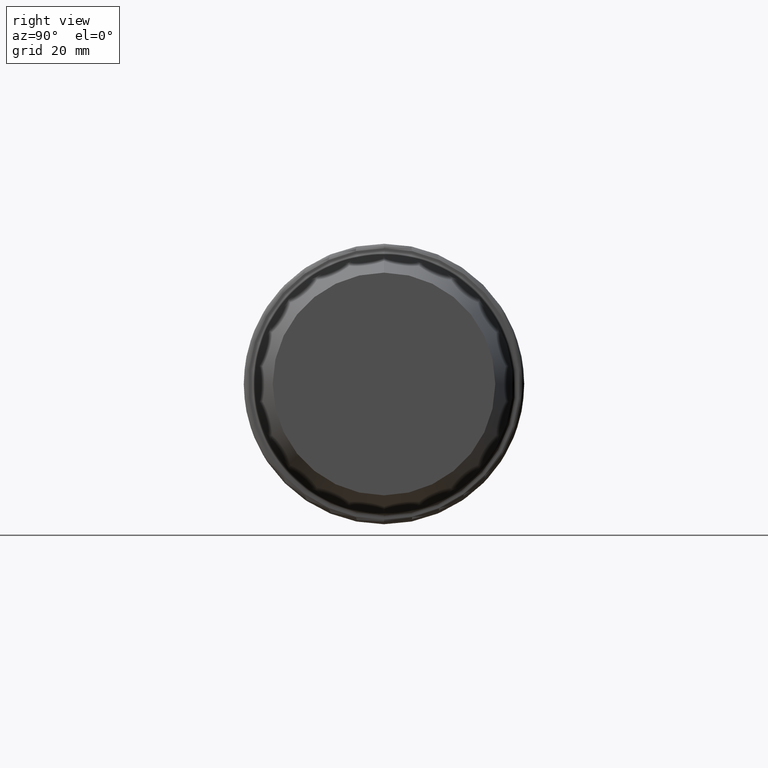
[diagram: clean part render]
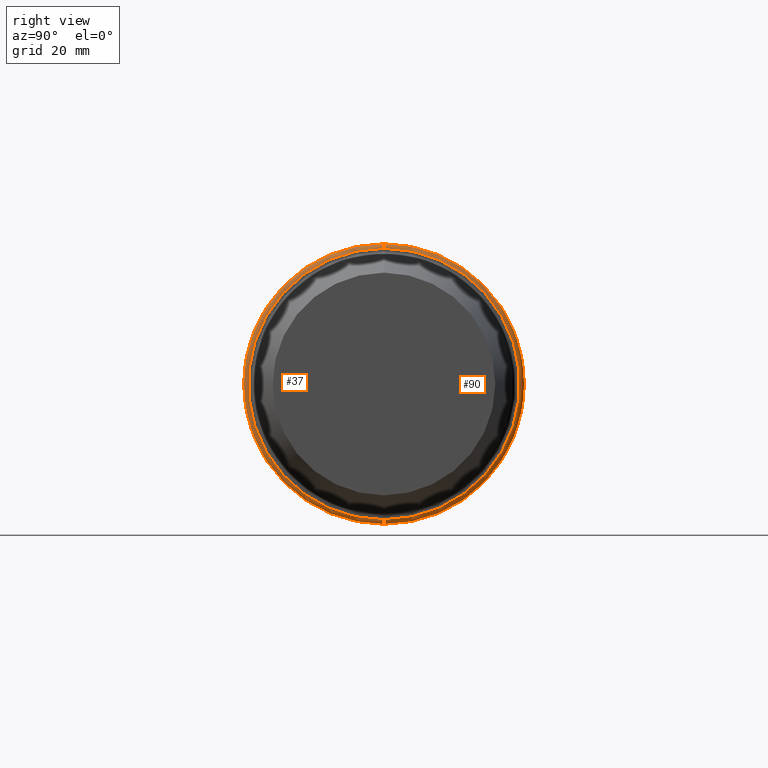
[diagram: same view with one multi-face feature highlighted, each face labeled with its STEP entity id]
A machine part, right view. The highlighted faces form ONE feature: a constant-radius fillet chain: 2 tangent blend faces with common blend radius 1 mm. The faces share edges in the B-rep.
Their STEP definitions:
[1] entity #90 (Torus):
#12 = CARTESIAN_POINT ( 'NONE',  ( 20.99999997694130016, 0.000000000000000000, 31.49249997071599338 ) ) ;
#15 = DIRECTION ( 'NONE',  ( -1.000000000000000000, 0.000000000000000000, 0.000000000000000000 ) ) ;
#21 = EDGE_CURVE ( 'NONE', #157, #488, #273, .T. ) ;
#27 = ORIENTED_EDGE ( 'NONE', *, *, #278, .F. ) ;
#47 = AXIS2_PLACEMENT_3D ( 'NONE', #496, #111, #208 ) ;
#56 = EDGE_CURVE ( 'NONE', #213, #157, #134, .T. ) ;
#90 = ADVANCED_FACE ( 'NONE', ( #334 ), #381, .T. ) ;
#111 = DIRECTION ( 'NONE',  ( -1.000000000000000000, 0.000000000000000000, 0.000000000000000000 ) ) ;
#118 = CIRCLE ( 'NONE', #178, 0.9999999989800008038 ) ;
#134 = CIRCLE ( 'NONE', #47, 30.49249997173599169 ) ;
#136 = CIRCLE ( 'NONE', #422, 31.49249997071599338 ) ;
#145 = AXIS2_PLACEMENT_3D ( 'NONE', #243, #419, #288 ) ;
#150 = EDGE_LOOP ( 'NONE', ( #538, #180, #274, #27 ) ) ;
#157 = VERTEX_POINT ( 'NONE', #468 ) ;
#167 = AXIS2_PLACEMENT_3D ( 'NONE', #535, #499, #231 ) ;
#178 = AXIS2_PLACEMENT_3D ( 'NONE', #401, #265, #357 ) ;
#180 = ORIENTED_EDGE ( 'NONE', *, *, #21, .T. ) ;
#208 = DIRECTION ( 'NONE',  ( 0.000000000000000000, 0.000000000000000000, 1.000000000000000000 ) ) ;
#213 = VERTEX_POINT ( 'NONE', #435 ) ;
#231 = DIRECTION ( 'NONE',  ( 0.000000000000000000, -1.224646799147354193E-16, 1.000000000000000000 ) ) ;
#243 = CARTESIAN_POINT ( 'NONE',  ( 20.99999997694130016, 0.000000000000000000, 0.000000000000000000 ) ) ;
#247 = CARTESIAN_POINT ( 'NONE',  ( 20.99999997694130016, 0.000000000000000000, 0.000000000000000000 ) ) ;
#265 = DIRECTION ( 'NONE',  ( 0.000000000000000000, -1.000000000000000000, 0.000000000000000000 ) ) ;
#273 = CIRCLE ( 'NONE', #167, 0.9999999989800008038 ) ;
#274 = ORIENTED_EDGE ( 'NONE', *, *, #362, .F. ) ;
#278 = EDGE_CURVE ( 'NONE', #213, #375, #118, .T. ) ;
#288 = DIRECTION ( 'NONE',  ( 0.000000000000000000, 0.000000000000000000, 1.000000000000000000 ) ) ;
#303 = DIRECTION ( 'NONE',  ( 0.000000000000000000, 0.000000000000000000, 1.000000000000000000 ) ) ;
#334 = FACE_OUTER_BOUND ( 'NONE', #150, .T. ) ;
#357 = DIRECTION ( 'NONE',  ( 0.000000000000000000, 0.000000000000000000, -1.000000000000000000 ) ) ;
#362 = EDGE_CURVE ( 'NONE', #375, #488, #136, .T. ) ;
#375 = VERTEX_POINT ( 'NONE', #12 ) ;
#381 = TOROIDAL_SURFACE ( 'NONE', #145, 30.49249997173599169, 0.9999999989799999156 ) ;
#396 = CARTESIAN_POINT ( 'NONE',  ( 20.99999997694130016, 3.856718928628543502E-15, -31.49249997071599338 ) ) ;
#401 = CARTESIAN_POINT ( 'NONE',  ( 20.99999997694130016, 0.000000000000000000, 30.49249997173599169 ) ) ;
#419 = DIRECTION ( 'NONE',  ( -1.000000000000000000, 0.000000000000000000, 0.000000000000000000 ) ) ;
#422 = AXIS2_PLACEMENT_3D ( 'NONE', #247, #15, #303 ) ;
#435 = CARTESIAN_POINT ( 'NONE',  ( 21.99999997592130185, 0.000000000000000000, 30.49249997173599169 ) ) ;
#468 = CARTESIAN_POINT ( 'NONE',  ( 21.99999997592130185, 3.795486588733635568E-15, -30.49249997173599169 ) ) ;
#488 = VERTEX_POINT ( 'NONE', #396 ) ;
#496 = CARTESIAN_POINT ( 'NONE',  ( 21.99999997592130185, 0.000000000000000000, 0.000000000000000000 ) ) ;
#499 = DIRECTION ( 'NONE',  ( 0.000000000000000000, 1.000000000000000000, 1.224646799147355919E-16 ) ) ;
#535 = CARTESIAN_POINT ( 'NONE',  ( 20.99999997694130016, 3.734254248838722111E-15, -30.49249997173599169 ) ) ;
#538 = ORIENTED_EDGE ( 'NONE', *, *, #56, .T. ) ;
[2] entity #37 (Torus):
#12 = CARTESIAN_POINT ( 'NONE',  ( 20.99999997694130016, 0.000000000000000000, 31.49249997071599338 ) ) ;
#21 = EDGE_CURVE ( 'NONE', #157, #488, #273, .T. ) ;
#37 = ADVANCED_FACE ( 'NONE', ( #327 ), #360, .T. ) ;
#52 = DIRECTION ( 'NONE',  ( -1.000000000000000000, 0.000000000000000000, 0.000000000000000000 ) ) ;
#76 = EDGE_CURVE ( 'NONE', #157, #213, #428, .T. ) ;
#80 = AXIS2_PLACEMENT_3D ( 'NONE', #89, #52, #332 ) ;
#89 = CARTESIAN_POINT ( 'NONE',  ( 21.99999997592130185, 0.000000000000000000, 0.000000000000000000 ) ) ;
#102 = CIRCLE ( 'NONE', #170, 31.49249997071599338 ) ;
#118 = CIRCLE ( 'NONE', #178, 0.9999999989800008038 ) ;
#139 = EDGE_LOOP ( 'NONE', ( #182, #523, #233, #321 ) ) ;
#157 = VERTEX_POINT ( 'NONE', #468 ) ;
#167 = AXIS2_PLACEMENT_3D ( 'NONE', #535, #499, #231 ) ;
#170 = AXIS2_PLACEMENT_3D ( 'NONE', #462, #426, #207 ) ;
#178 = AXIS2_PLACEMENT_3D ( 'NONE', #401, #265, #357 ) ;
#182 = ORIENTED_EDGE ( 'NONE', *, *, #21, .F. ) ;
#199 = AXIS2_PLACEMENT_3D ( 'NONE', #283, #527, #369 ) ;
#207 = DIRECTION ( 'NONE',  ( 0.000000000000000000, 0.000000000000000000, 1.000000000000000000 ) ) ;
#213 = VERTEX_POINT ( 'NONE', #435 ) ;
#231 = DIRECTION ( 'NONE',  ( 0.000000000000000000, -1.224646799147354193E-16, 1.000000000000000000 ) ) ;
#233 = ORIENTED_EDGE ( 'NONE', *, *, #278, .T. ) ;
#265 = DIRECTION ( 'NONE',  ( 0.000000000000000000, -1.000000000000000000, 0.000000000000000000 ) ) ;
#273 = CIRCLE ( 'NONE', #167, 0.9999999989800008038 ) ;
#278 = EDGE_CURVE ( 'NONE', #213, #375, #118, .T. ) ;
#283 = CARTESIAN_POINT ( 'NONE',  ( 20.99999997694130016, 0.000000000000000000, 0.000000000000000000 ) ) ;
#321 = ORIENTED_EDGE ( 'NONE', *, *, #394, .F. ) ;
#327 = FACE_OUTER_BOUND ( 'NONE', #139, .T. ) ;
#332 = DIRECTION ( 'NONE',  ( 0.000000000000000000, 0.000000000000000000, 1.000000000000000000 ) ) ;
#357 = DIRECTION ( 'NONE',  ( 0.000000000000000000, 0.000000000000000000, -1.000000000000000000 ) ) ;
#360 = TOROIDAL_SURFACE ( 'NONE', #199, 30.49249997173599169, 0.9999999989799999156 ) ;
#369 = DIRECTION ( 'NONE',  ( 0.000000000000000000, 0.000000000000000000, 1.000000000000000000 ) ) ;
#375 = VERTEX_POINT ( 'NONE', #12 ) ;
#394 = EDGE_CURVE ( 'NONE', #488, #375, #102, .T. ) ;
#396 = CARTESIAN_POINT ( 'NONE',  ( 20.99999997694130016, 3.856718928628543502E-15, -31.49249997071599338 ) ) ;
#401 = CARTESIAN_POINT ( 'NONE',  ( 20.99999997694130016, 0.000000000000000000, 30.49249997173599169 ) ) ;
#426 = DIRECTION ( 'NONE',  ( -1.000000000000000000, 0.000000000000000000, 0.000000000000000000 ) ) ;
#428 = CIRCLE ( 'NONE', #80, 30.49249997173599169 ) ;
#435 = CARTESIAN_POINT ( 'NONE',  ( 21.99999997592130185, 0.000000000000000000, 30.49249997173599169 ) ) ;
#462 = CARTESIAN_POINT ( 'NONE',  ( 20.99999997694130016, 0.000000000000000000, 0.000000000000000000 ) ) ;
#468 = CARTESIAN_POINT ( 'NONE',  ( 21.99999997592130185, 3.795486588733635568E-15, -30.49249997173599169 ) ) ;
#488 = VERTEX_POINT ( 'NONE', #396 ) ;
#499 = DIRECTION ( 'NONE',  ( 0.000000000000000000, 1.000000000000000000, 1.224646799147355919E-16 ) ) ;
#523 = ORIENTED_EDGE ( 'NONE', *, *, #76, .T. ) ;
#527 = DIRECTION ( 'NONE',  ( -1.000000000000000000, 0.000000000000000000, 0.000000000000000000 ) ) ;
#535 = CARTESIAN_POINT ( 'NONE',  ( 20.99999997694130016, 3.734254248838722111E-15, -30.49249997173599169 ) ) ;